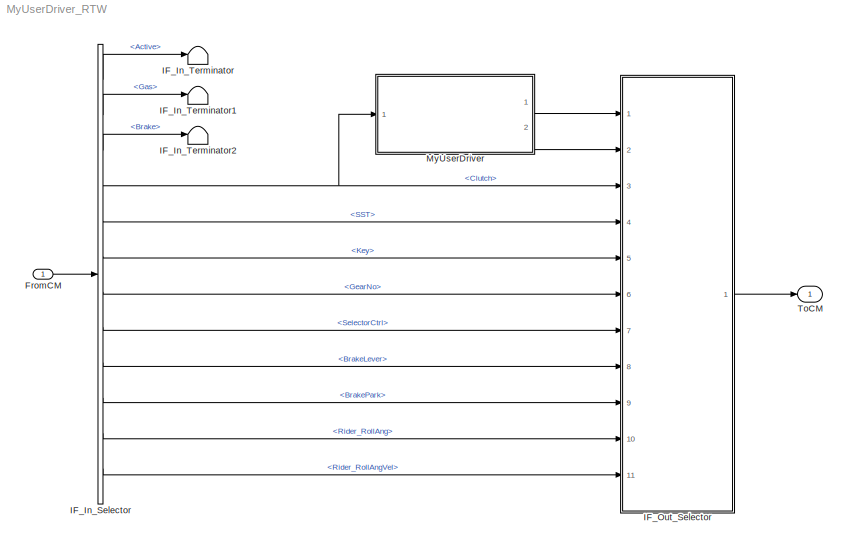
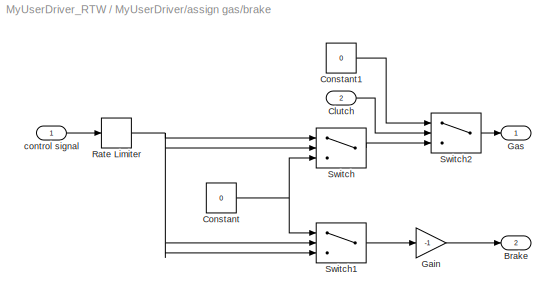
MODEL MyUserDriver_RTW
KIND model
CONFIG InitFcn = vehicle = 'Car'; if ~length(which('cmself')), cmenv; end\nMyUserDriver_RTW_bus
CONFIG PreLoadFcn = vehicle = 'Car'; if ~length(which('cmself')), cmenv; end\nMyUserDriver_RTW_bus;\nMyUserDriver_RTW_params;
BLOCK [Inport] FromCM
  IconDisplay = Port number
  OutDataTypeStr = Bus: cmUserDriverIn
  SID = 1
BLOCK [BusSelector] IF_In_Selector
  OutputAsBus = off
  OutputSignals = Active,Gas,Brake,Clutch,SST,Key,GearNo,SelectorCtrl,BrakeLever,BrakePark,Rider_RollAng,Rider_RollAngVel
  Ports = [1, 12]
  SID = 2
BLOCK [Terminator] IF_In_Terminator
  SID = 74
BLOCK [Terminator] IF_In_Terminator1
  SID = 73
BLOCK [Terminator] IF_In_Terminator2
  SID = 90
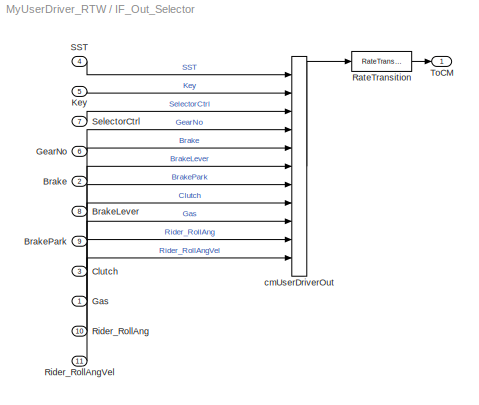
BLOCK [SubSystem] IF_Out_Selector
  OpenFcn = cmSignalSelect('SignalSelection_CB',gcb)
  Ports = [11, 1]
  RequestExecContextInheritance = off
  SID = 5
  UserData = DataTag0
  UserDataPersistent = on
BLOCK [Inport] IF_Out_Selector/Brake
  IconDisplay = Port number
  Port = 2
  SID = 21
BLOCK [Inport] IF_Out_Selector/BrakeLever
  IconDisplay = Port number
  Port = 8
  SID = 68
BLOCK [Inport] IF_Out_Selector/BrakePark
  IconDisplay = Port number
  Port = 9
  SID = 69
BLOCK [Inport] IF_Out_Selector/Clutch
  IconDisplay = Port number
  Port = 3
  SID = 70
BLOCK [Inport] IF_Out_Selector/Gas
  IconDisplay = Port number
  SID = 20
BLOCK [Inport] IF_Out_Selector/GearNo
  IconDisplay = Port number
  Port = 6
  SID = 67
BLOCK [Inport] IF_Out_Selector/Key
  IconDisplay = Port number
  Port = 5
  SID = 65
BLOCK [RateTransition] IF_Out_Selector/RateTransition
  OutPortSampleTime = str2num(get_param(bdroot,'FixedStep'))
  SID = 6
BLOCK [Inport] IF_Out_Selector/Rider_RollAng
  IconDisplay = Port number
  Port = 10
  SID = 71
BLOCK [Inport] IF_Out_Selector/Rider_RollAngVel
  IconDisplay = Port number
  Port = 11
  SID = 72
BLOCK [Inport] IF_Out_Selector/SST
  IconDisplay = Port number
  Port = 4
  SID = 64
BLOCK [Inport] IF_Out_Selector/SelectorCtrl
  IconDisplay = Port number
  Port = 7
  SID = 66
BLOCK [Outport] IF_Out_Selector/ToCM
  IconDisplay = Port number
  SID = 7
BLOCK [BusCreator] IF_Out_Selector/cmUserDriverOut
  InheritFromInputs = on
  Inputs = 11
  Ports = [11, 1]
  SID = 8
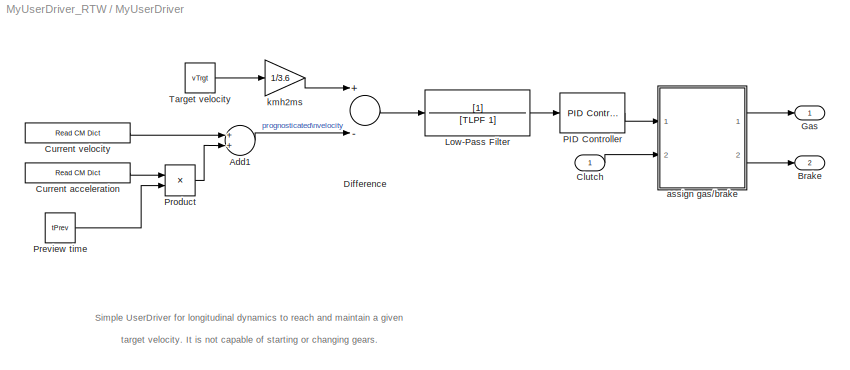
BLOCK [SubSystem] MyUserDriver
  Ports = [1, 2]
  RequestExecContextInheritance = off
  SID = 44
BLOCK [Sum] MyUserDriver/Add1
  InputSameDT = off
  OutDataTypeStr = Inherit: Inherit via internal rule
  Ports = [2, 1]
  SID = 46
  SaturateOnIntegerOverflow = off
BLOCK [Outport] MyUserDriver/Brake
  IconDisplay = Port number
  Port = 2
  SID = 63
BLOCK [Inport] MyUserDriver/Clutch
  IconDisplay = Port number
  SID = 84
BLOCK [Reference] MyUserDriver/Current acceleration  REF=CarMaker4SL/Read CM Dict
  MultiThreadCoSim = auto
  Ports = [0, 1]
  SID = 47
  SourceBlock = CarMaker4SL/Read CM Dict
  SourceProductName = CarMaker4SL
  SourceType = Read CarMaker Dictionary Variable(s)
  xname = Vhcl.PoI.ax_1
  xstime = Continuous
  xsync = off
BLOCK [Reference] MyUserDriver/Current velocity  REF=CarMaker4SL/Read CM Dict
  MultiThreadCoSim = auto
  Ports = [0, 1]
  SID = 48
  SourceBlock = CarMaker4SL/Read CM Dict
  SourceProductName = CarMaker4SL
  SourceType = Read CarMaker Dictionary Variable(s)
  xname = Vhcl.PoI.vx_1
  xstime = Continuous
  xsync = off
BLOCK [Sum] MyUserDriver/Difference
  InputSameDT = off
  Inputs = +-
  OutDataTypeStr = Inherit: Inherit via internal rule
  Ports = [2, 1]
  SID = 45
  SaturateOnIntegerOverflow = off
BLOCK [Outport] MyUserDriver/Gas
  IconDisplay = Port number
  SID = 62
BLOCK [TransferFcn] MyUserDriver/Low-Pass Filter
  Denominator = [TLPF 1]
  SID = 75
BLOCK [Reference] MyUserDriver/PID Controller  REF=simulink/Continuous/PID Controller
  AntiWindupMode = clamping
  Controller = PID
  ControllerParametersSource = internal
  D = kd
  DGainOutDataTypeStr = Inherit: Inherit via internal rule
  DOutMax = []
  DOutMin = []
  DParamDataTypeStr = Inherit: Inherit via internal rule
  DParamMax = []
  DParamMin = []
  DProdOutDataTypeStr = Inherit: Inherit via internal rule
  DifferentiatorICPrevScaledInput = 0
  DifferentiatorOutDataTypeStr = Inherit: Inherit via internal rule
  DifferentiatorOutMax = []
  DifferentiatorOutMin = []
  DivideOutDataTypeStr = Inherit: Inherit via internal rule
  DivideOutMax = []
  DivideOutMin = []
  ExternalReset = none
  FilterContinuousStateAttributes = ''
  FilterDiffDenAccumDataTypeStr = Inherit: Inherit via internal rule
  FilterDiffDenProductOutputDataTypeStr = Inherit: Inherit via internal rule
  FilterDiffNumAccumDataTypeStr = Inherit: Inherit via internal rule
  FilterDiffNumProductOutputDataTypeStr = Inherit: Inherit via internal rule
  FilterDiffOutCoefDataTypeStr = Inherit: Inherit via internal rule
  FilterDiffOutCoefMax = []
  FilterDiffOutCoefMin = []
  FilterMethod = Forward Euler
  FilterOutDataTypeStr = Inherit: Inherit via internal rule
  FilterOutMax = []
  FilterOutMin = []
  FilterRTWStateStorageClass = Auto
  FilterStateMustResolveToSignalObject = off
  Form = Parallel
  I = ki
  IGainOutDataTypeStr = Inherit: Inherit via internal rule
  IOutMax = []
  IOutMin = []
  IParamDataTypeStr = Inherit: Inherit via internal rule
  IParamMax = []
  IParamMin = []
  IProdOutDataTypeStr = Inherit: Inherit via internal rule
  IgnoreLimit = off
  InitialConditionForFilter = 0
  InitialConditionForIntegrator = 0
  InitialConditionSetting = Auto
  InitialConditionSource = internal
  IntegratorContinuousStateAttributes = ''
  IntegratorMethod = Forward Euler
  IntegratorOutDataTypeStr = Inherit: Inherit via internal rule
  IntegratorOutMax = []
  IntegratorOutMin = []
  IntegratorRTWStateStorageClass = Auto
  IntegratorStateMustResolveToSignalObject = off
  Kb = 1
  KbOutDataTypeStr = Inherit: Inherit via internal rule
  KbOutMax = []
  KbOutMin = []
  KbParamDataTypeStr = Inherit: Inherit via internal rule
  KbParamMax = []
  KbParamMin = []
  Kt = 1
  KtOutDataTypeStr = Inherit: Inherit via internal rule
  KtOutMax = []
  KtOutMin = []
  KtParamDataTypeStr = Inherit: Inherit via internal rule
  KtParamMax = []
  KtParamMin = []
  LimitOutput = on
  LinearizeAsGain = on
  LockScale = off
  LowerSaturationLimit = -1
  N = 100
  NGainOutDataTypeStr = Inherit: Inherit via internal rule
  NOutMax = []
  NOutMin = []
  NParamDataTypeStr = Inherit: Inherit via internal rule
  NParamMax = []
  NParamMin = []
  NProdOutDataTypeStr = Inherit: Inherit via internal rule
  P = kp
  PGainOutDataTypeStr = Inherit: Inherit via internal rule
  POutMax = []
  POutMin = []
  PParamDataTypeStr = Inherit: Inherit via internal rule
  PParamMax = []
  PParamMin = []
  PProdOutDataTypeStr = Inherit: Inherit via internal rule
  Ports = [1, 1]
  ReciprocalOutDataTypeStr = Inherit: Inherit via internal rule
  ReciprocalOutMax = []
  ReciprocalOutMin = []
  RndMeth = Floor
  SID = 49
  SampleTime = -1
  SaturateOnIntegerOverflow = off
  SaturationOutDataTypeStr = Inherit: Same as input
  SaturationOutMax = []
  SaturationOutMin = []
  SourceBlock = simulink/Continuous/PID Controller
  SourceProductBaseCode = SL
  SourceProductName = Simulink
  SourceType = PID 1dof
  SumAccumDataTypeStr = Inherit: Inherit via internal rule
  SumDAccumDataTypeStr = Inherit: Inherit via internal rule
  SumDOutDataTypeStr = Inherit: Inherit via internal rule
  SumDOutMax = []
  SumDOutMin = []
  SumDenAccumDataTypeStr = Inherit: Inherit via internal rule
  SumDenOutDataTypeStr = Inherit: Inherit via internal rule
  SumDenOutMax = []
  SumDenOutMin = []
  SumI1AccumDataTypeStr = Inherit: Inherit via internal rule
  SumI1OutDataTypeStr = Inherit: Inherit via internal rule
  SumI1OutMax = []
  SumI1OutMin = []
  SumI2AccumDataTypeStr = Inherit: Inherit via internal rule
  SumI2OutDataTypeStr = Inherit: Inherit via internal rule
  SumI2OutMax = []
  SumI2OutMin = []
  SumI3AccumDataTypeStr = Inherit: Inherit via internal rule
  SumI3OutDataTypeStr = Inherit: Inherit via internal rule
  SumI3OutMax = []
  SumI3OutMin = []
  SumNumAccumDataTypeStr = Inherit: Inherit via internal rule
  SumNumOutDataTypeStr = Inherit: Inherit via internal rule
  SumNumOutMax = []
  SumNumOutMin = []
  SumOutDataTypeStr = Inherit: Inherit via internal rule
  SumOutMax = []
  SumOutMin = []
  TimeDomain = Continuous-time
  TrackingMode = off
  TunerSelectOption = Transfer Function Based (PID Tuner App)
  UpperSaturationLimit = 1
  UseFilter = on
  ZeroCross = on
BLOCK [Constant] MyUserDriver/Preview time
  SID = 50
  Value = tPrev
BLOCK [Product] MyUserDriver/Product
  InputSameDT = off
  OutDataTypeStr = Inherit: Inherit via internal rule
  Ports = [2, 1]
  RndMeth = Floor
  SID = 51
  SaturateOnIntegerOverflow = off
BLOCK [Constant] MyUserDriver/Target velocity
  SID = 52
  Value = vTrgt
BLOCK [SubSystem] MyUserDriver/assign gas//brake
  Ports = [2, 2]
  RequestExecContextInheritance = off
  SID = 53
BLOCK [Outport] MyUserDriver/assign gas//brake/Brake
  IconDisplay = Port number
  Port = 2
  SID = 60
BLOCK [Inport] MyUserDriver/assign gas//brake/Clutch
  IconDisplay = Port number
  Port = 2
  SID = 79
BLOCK [Constant] MyUserDriver/assign gas//brake/Constant
  SID = 55
  Value = 0
BLOCK [Constant] MyUserDriver/assign gas//brake/Constant1
  SID = 80
  Value = 0
BLOCK [Gain] MyUserDriver/assign gas//brake/Gain
  Gain = -1
  OutDataTypeStr = Inherit: Inherit via internal rule
  ParamDataTypeStr = Inherit: Inherit via internal rule
  SID = 56
  SaturateOnIntegerOverflow = off
BLOCK [Outport] MyUserDriver/assign gas//brake/Gas
  IconDisplay = Port number
  SID = 59
BLOCK [RateLimiter] MyUserDriver/assign gas//brake/Rate Limiter
  SID = 82
  SampleTimeMode = inherited
BLOCK [Switch] MyUserDriver/assign gas//brake/Switch
  InputSameDT = off
  SID = 57
  SaturateOnIntegerOverflow = off
BLOCK [Switch] MyUserDriver/assign gas//brake/Switch1
  InputSameDT = off
  SID = 58
  SaturateOnIntegerOverflow = off
BLOCK [Switch] MyUserDriver/assign gas//brake/Switch2
  Criteria = u2 > Threshold
  InputSameDT = off
  SID = 76
  SaturateOnIntegerOverflow = off
  Threshold = 0.1
BLOCK [Inport] MyUserDriver/assign gas//brake/control signal
  IconDisplay = Port number
  SID = 54
BLOCK [Gain] MyUserDriver/kmh2ms
  Gain = 1/3.6
  OutDataTypeStr = Inherit: Inherit via internal rule
  ParamDataTypeStr = Inherit: Inherit via internal rule
  SID = 61
  SaturateOnIntegerOverflow = off
BLOCK [Outport] ToCM
  IconDisplay = Port number
  OutDataTypeStr = Bus: cmUserDriverOut
  SID = 4
ANNOTATION MyUserDriver: \n \n Simple UserDriver for longitudinal dynamics to reach and maintain a given \n target velocity. It is not capable of starting or changing gears.
LINE FromCM:1 -> IF_In_Selector:1
LINE IF_In_Selector:1 -> IF_In_Terminator:1
LINE IF_In_Selector:10 -> IF_Out_Selector:9
LINE IF_In_Selector:11 -> IF_Out_Selector:10
LINE IF_In_Selector:12 -> IF_Out_Selector:11
LINE IF_In_Selector:2 -> IF_In_Terminator1:1
LINE IF_In_Selector:3 -> IF_In_Terminator2:1
NET IF_In_Selector:4 -> IF_Out_Selector:3, MyUserDriver:1
LINE IF_In_Selector:5 -> IF_Out_Selector:4
LINE IF_In_Selector:6 -> IF_Out_Selector:5
LINE IF_In_Selector:7 -> IF_Out_Selector:6
LINE IF_In_Selector:8 -> IF_Out_Selector:7
LINE IF_In_Selector:9 -> IF_Out_Selector:8
LINE IF_Out_Selector/Brake:1 -> IF_Out_Selector/cmUserDriverOut:5
LINE IF_Out_Selector/BrakeLever:1 -> IF_Out_Selector/cmUserDriverOut:6
LINE IF_Out_Selector/BrakePark:1 -> IF_Out_Selector/cmUserDriverOut:7
LINE IF_Out_Selector/Clutch:1 -> IF_Out_Selector/cmUserDriverOut:8
LINE IF_Out_Selector/Gas:1 -> IF_Out_Selector/cmUserDriverOut:9
LINE IF_Out_Selector/GearNo:1 -> IF_Out_Selector/cmUserDriverOut:4
LINE IF_Out_Selector/Key:1 -> IF_Out_Selector/cmUserDriverOut:2
LINE IF_Out_Selector/RateTransition:1 -> IF_Out_Selector/ToCM:1
LINE IF_Out_Selector/Rider_RollAng:1 -> IF_Out_Selector/cmUserDriverOut:10
LINE IF_Out_Selector/Rider_RollAngVel:1 -> IF_Out_Selector/cmUserDriverOut:11
LINE IF_Out_Selector/SST:1 -> IF_Out_Selector/cmUserDriverOut:1
LINE IF_Out_Selector/SelectorCtrl:1 -> IF_Out_Selector/cmUserDriverOut:3
LINE IF_Out_Selector/cmUserDriverOut:1 -> IF_Out_Selector/RateTransition:1
LINE IF_Out_Selector:1 -> ToCM:1
LINE MyUserDriver/Add1:1 -> MyUserDriver/Difference:2
LINE MyUserDriver/Clutch:1 -> MyUserDriver/assign gas//brake:2
LINE MyUserDriver/Current acceleration:1 -> MyUserDriver/Product:1
LINE MyUserDriver/Current velocity:1 -> MyUserDriver/Add1:1
LINE MyUserDriver/Difference:1 -> MyUserDriver/Low-Pass Filter:1
LINE MyUserDriver/Low-Pass Filter:1 -> MyUserDriver/PID Controller:1
LINE MyUserDriver/PID Controller:1 -> MyUserDriver/assign gas//brake:1
LINE MyUserDriver/Preview time:1 -> MyUserDriver/Product:2
LINE MyUserDriver/Product:1 -> MyUserDriver/Add1:2
LINE MyUserDriver/Target velocity:1 -> MyUserDriver/kmh2ms:1
LINE MyUserDriver/assign gas//brake/Clutch:1 -> MyUserDriver/assign gas//brake/Switch2:2
LINE MyUserDriver/assign gas//brake/Constant1:1 -> MyUserDriver/assign gas//brake/Switch2:1
NET MyUserDriver/assign gas//brake/Constant:1 -> MyUserDriver/assign gas//brake/Switch1:1, MyUserDriver/assign gas//brake/Switch:3
LINE MyUserDriver/assign gas//brake/Gain:1 -> MyUserDriver/assign gas//brake/Brake:1
NET MyUserDriver/assign gas//brake/Rate Limiter:1 -> MyUserDriver/assign gas//brake/Switch1:2, MyUserDriver/assign gas//brake/Switch1:3, MyUserDriver/assign gas//brake/Switch:1, MyUserDriver/assign gas//brake/Switch:2
LINE MyUserDriver/assign gas//brake/Switch1:1 -> MyUserDriver/assign gas//brake/Gain:1
LINE MyUserDriver/assign gas//brake/Switch2:1 -> MyUserDriver/assign gas//brake/Gas:1
LINE MyUserDriver/assign gas//brake/Switch:1 -> MyUserDriver/assign gas//brake/Switch2:3
LINE MyUserDriver/assign gas//brake/control signal:1 -> MyUserDriver/assign gas//brake/Rate Limiter:1
LINE MyUserDriver/assign gas//brake:1 -> MyUserDriver/Gas:1
LINE MyUserDriver/assign gas//brake:2 -> MyUserDriver/Brake:1
LINE MyUserDriver/kmh2ms:1 -> MyUserDriver/Difference:1
LINE MyUserDriver:1 -> IF_Out_Selector:1
LINE MyUserDriver:2 -> IF_Out_Selector:2
note: NET lines group one-source signal fan-out (src -> all destinations, sorted); 1:1 wires keep LINE
